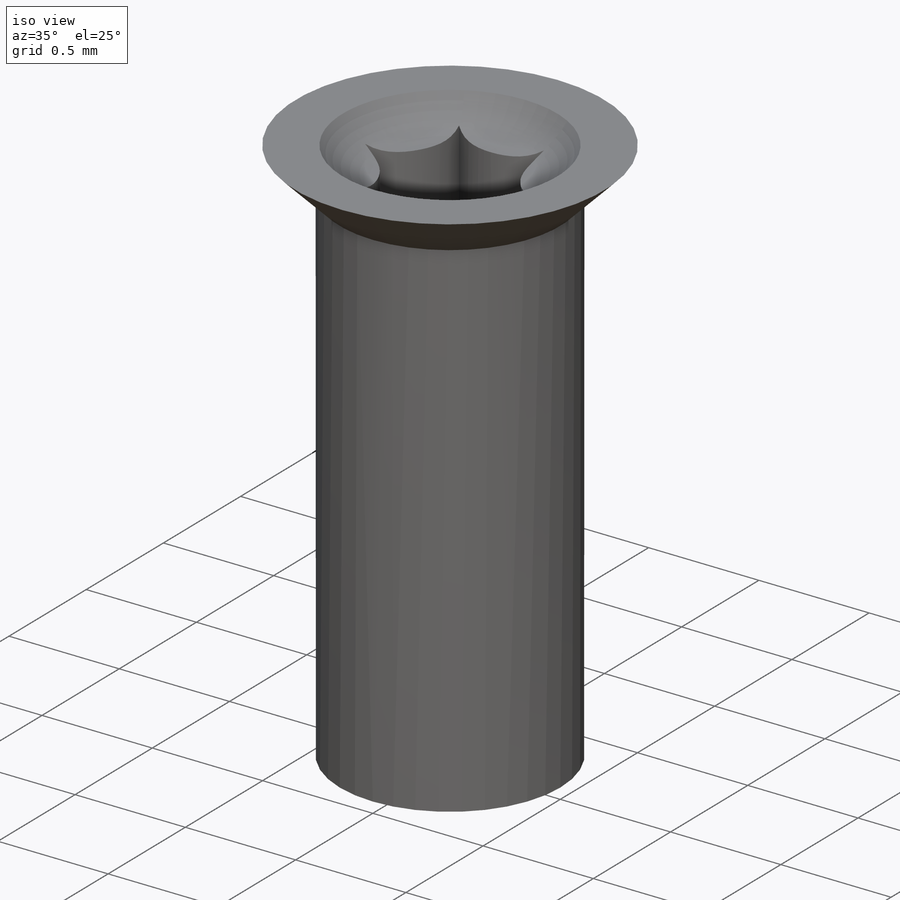
[diagram: iso view]
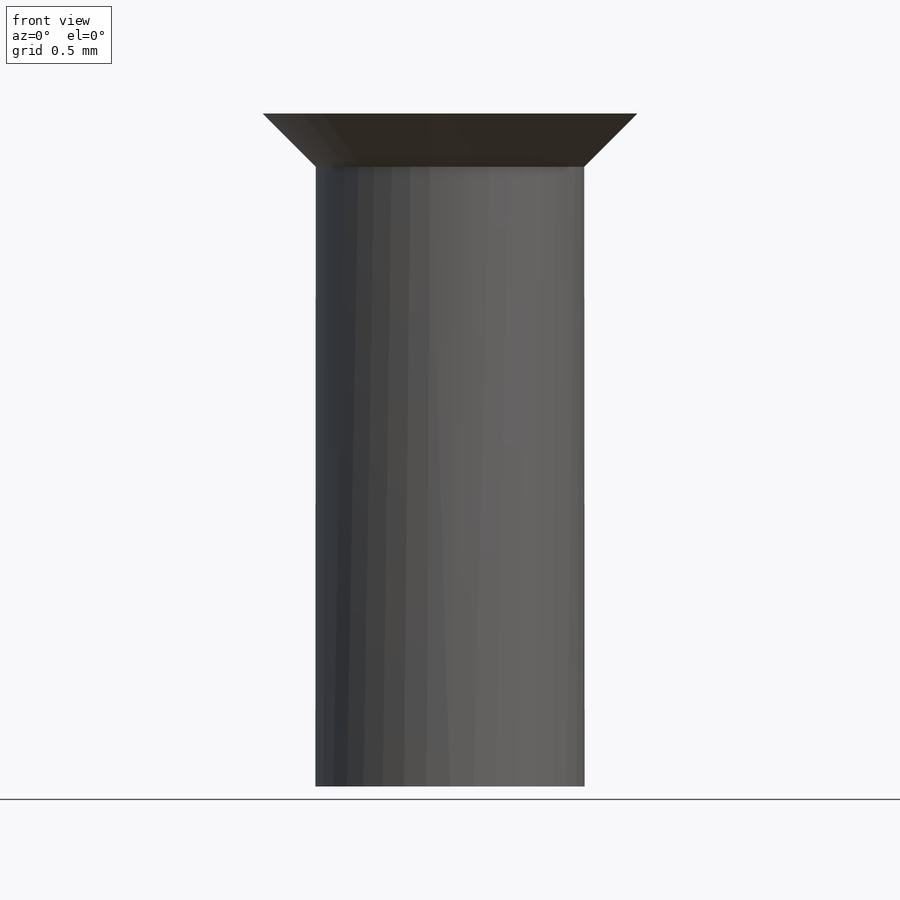
[diagram: front view]
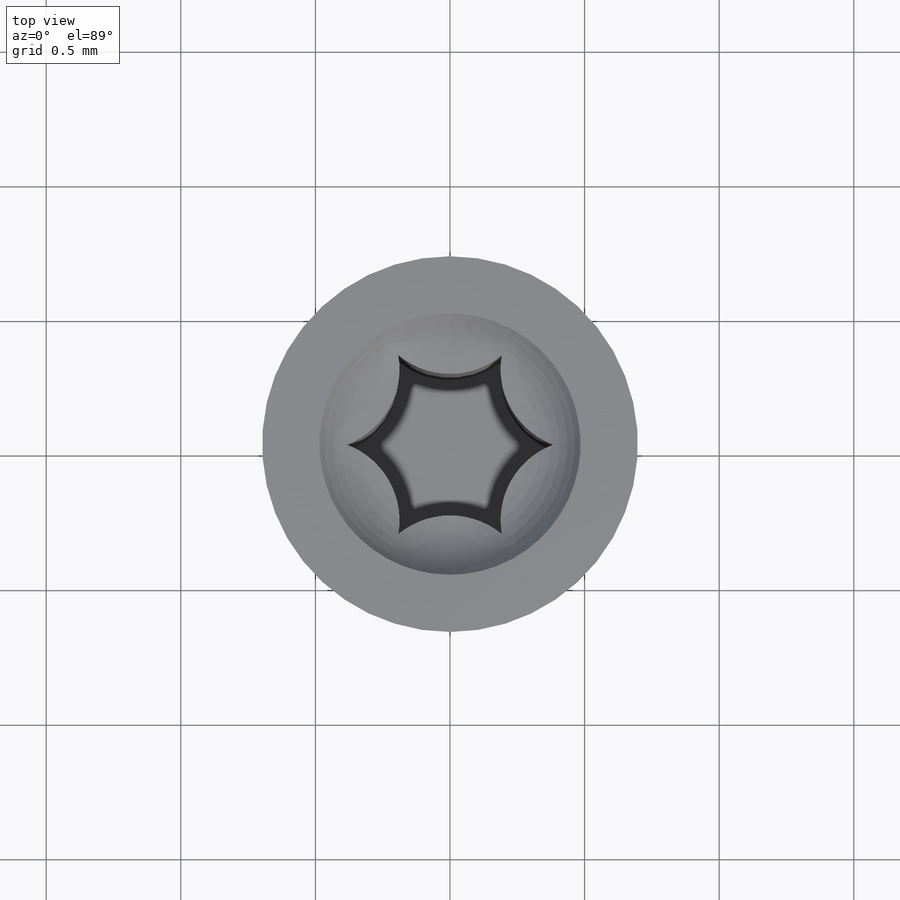
[diagram: top view]
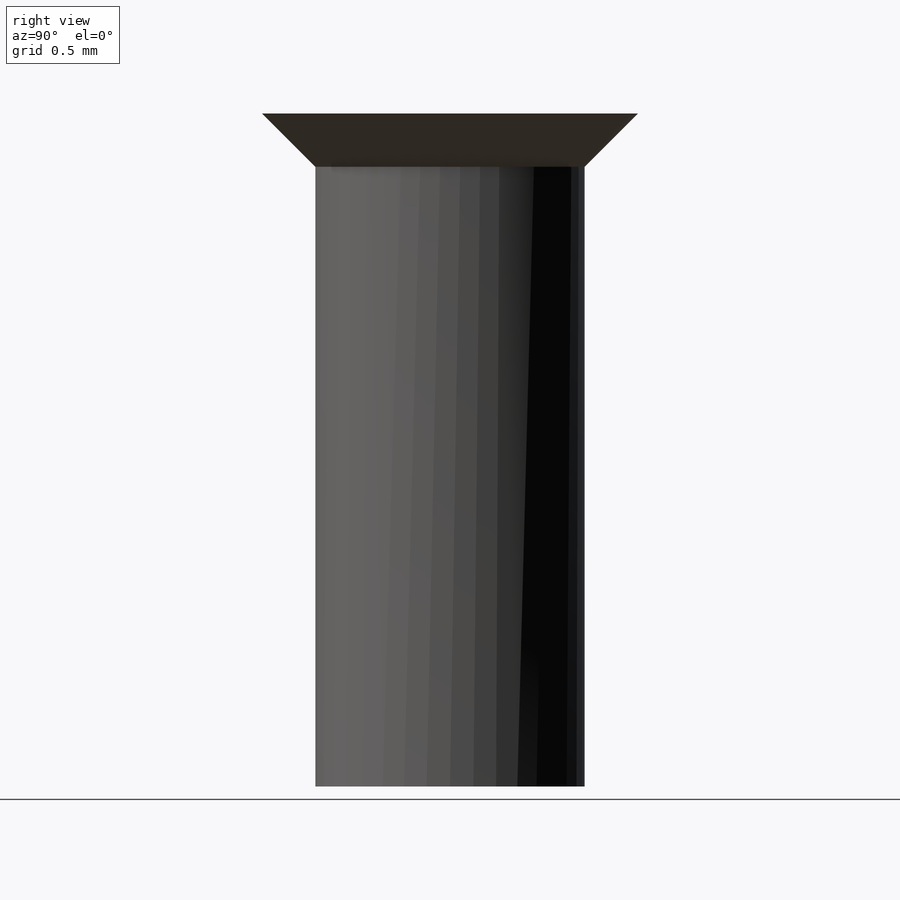
[diagram: right view]
SOLIDWORKS PART (.sldprt)
format: sldprt  version: not decoded by parser v0  size: 197,632 bytes
history: native  units: mm
features: plane x3, sketch x3, material x1, revolve x1, cut_extrude x1, cut_revolve x1 (+10 scaffold rows collapsed)
feature tree (20):
  scaffold x10  (default folders/planes/origin — collapsed)
  material  "Matériau <non spécifié>"
  plane  "Plan de face"
  plane  "Plan de dessus"
  plane  "Plan de droite"
  sketch  "Esquisse1"  dims[c1.D1=1.35mm c1.D2=2.5mm c1.D3=2.5mm c2.D3=45.0deg c2.D4=0.5mm c2.D5=0.675mm c2.D1=0.28mm]
  revolve  "Révolution1"  Angle=360deg
  sketch  "Esquisse2"  dims[c1.D1=0.4mm c1.D2=~0.129279mm c1.D3=0.3mm c2.D1=~1.02412mm c2.D2=~0.591276mm c3.D1=~0.263032mm]
  cut_extrude  "Enlèv. mat.-Extru.1"  Depth=1.5mm
  sketch  "Esquisse3"  dims[c1.D1=~0.186688mm c1.D3=0.26mm c2.D1=0.13mm c2.D2=0.26mm c2.D4=0.13mm]
  cut_revolve  "Enlèvement de matière-Révolution2"  Angle=360deg
decode coverage: 6 of 6 modeling features carry decoded parameters
note: ~ marks probable driven/reference dimensions
note: suppression state not decoded; provenance and decode notes live in map.json
